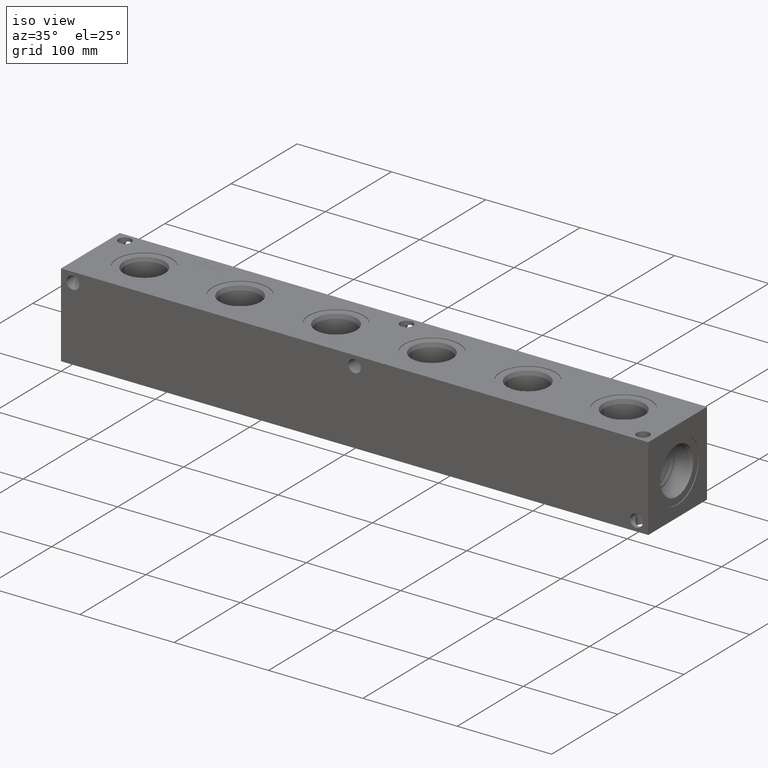
[diagram: clean part render]
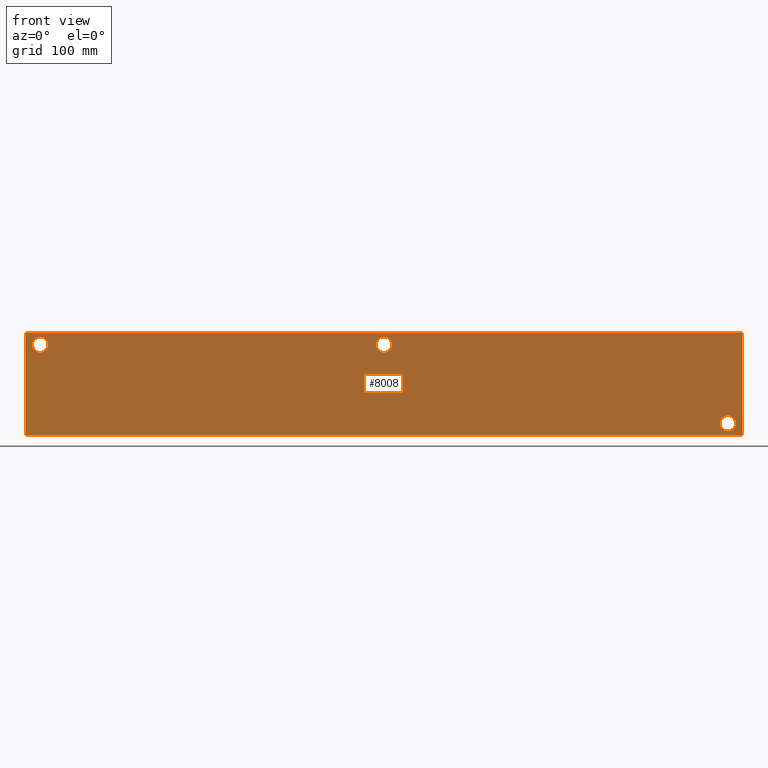
[diagram: tour spotlight — one face highlighted and labeled with its STEP entity id]
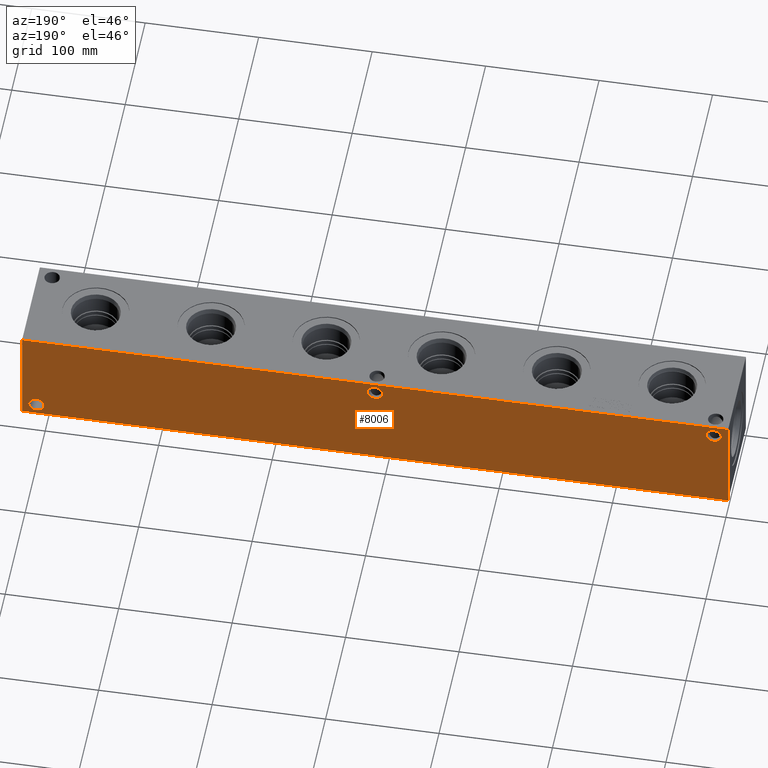
[diagram: tour spotlight — one face highlighted and labeled with its STEP entity id]
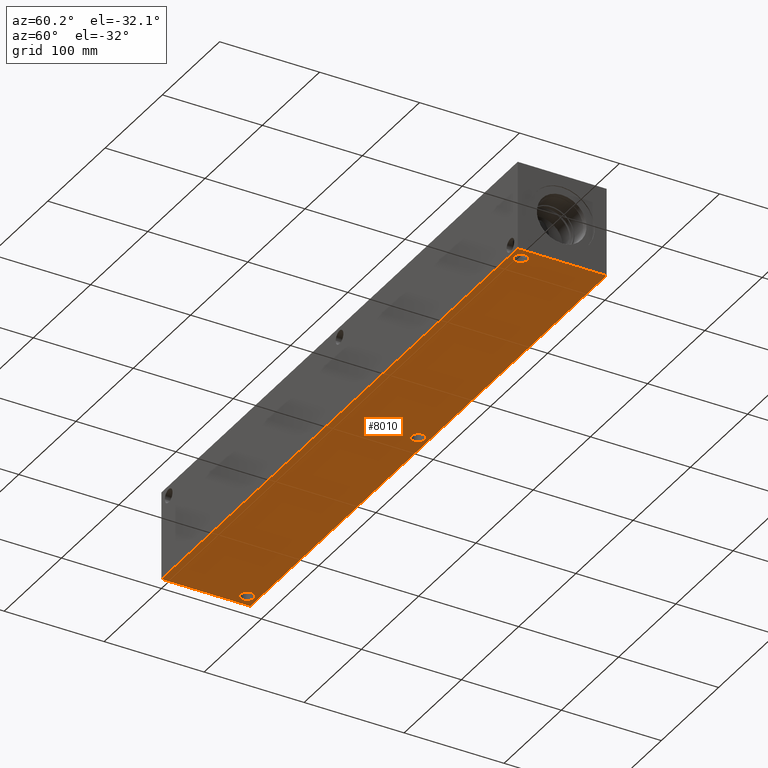
[diagram: tour spotlight — one face highlighted and labeled with its STEP entity id]
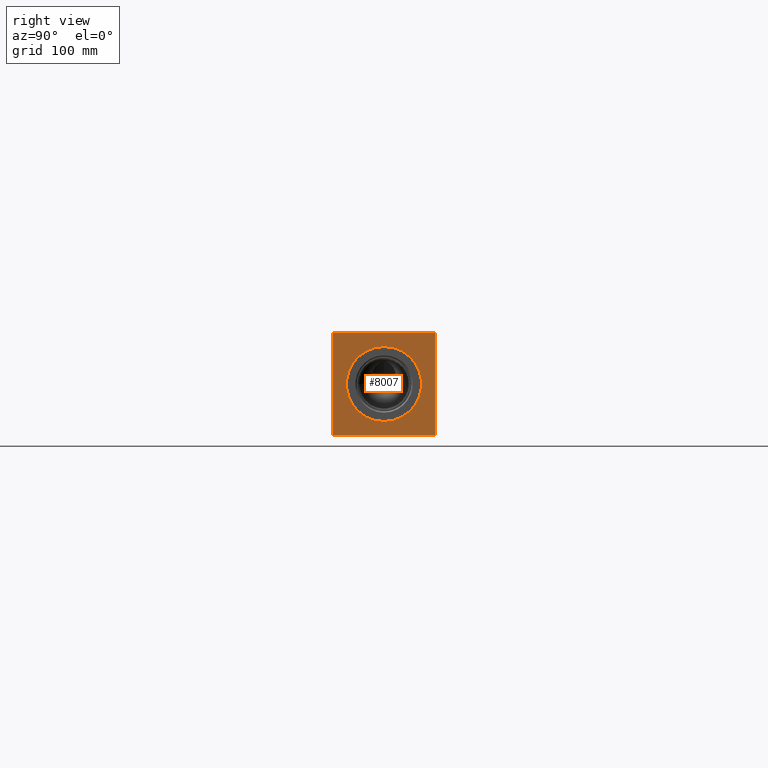
[diagram: tour spotlight — one face highlighted and labeled with its STEP entity id]
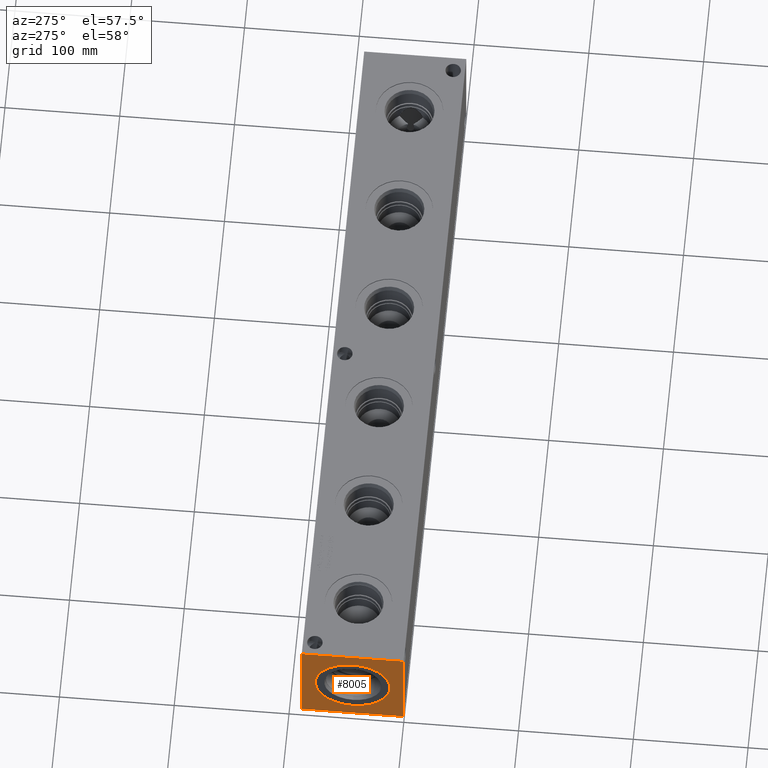
[diagram: tour spotlight — one face highlighted and labeled with its STEP entity id]
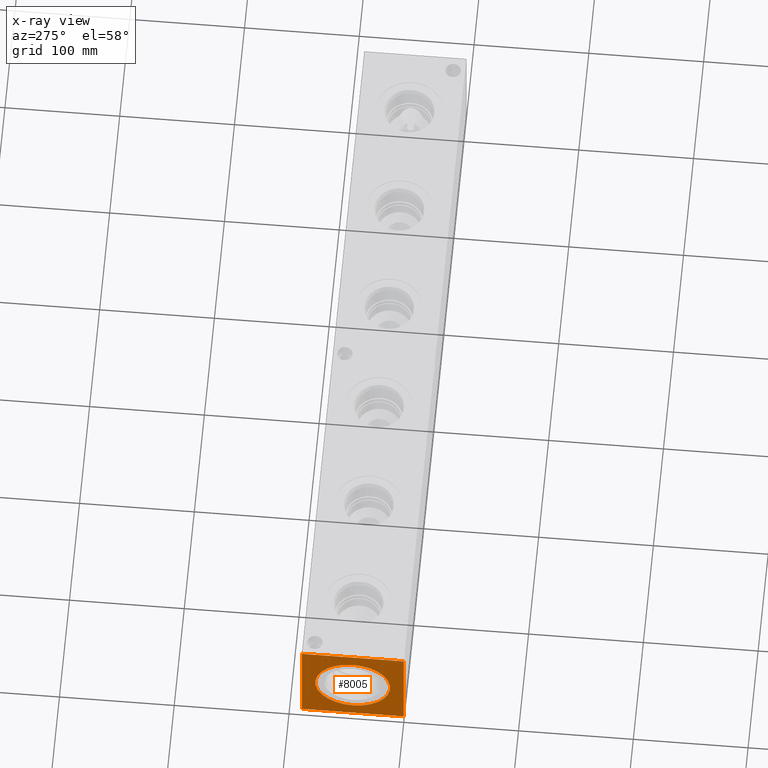
[diagram: x-ray of the same camera — body ghosted, this tour face saturated]
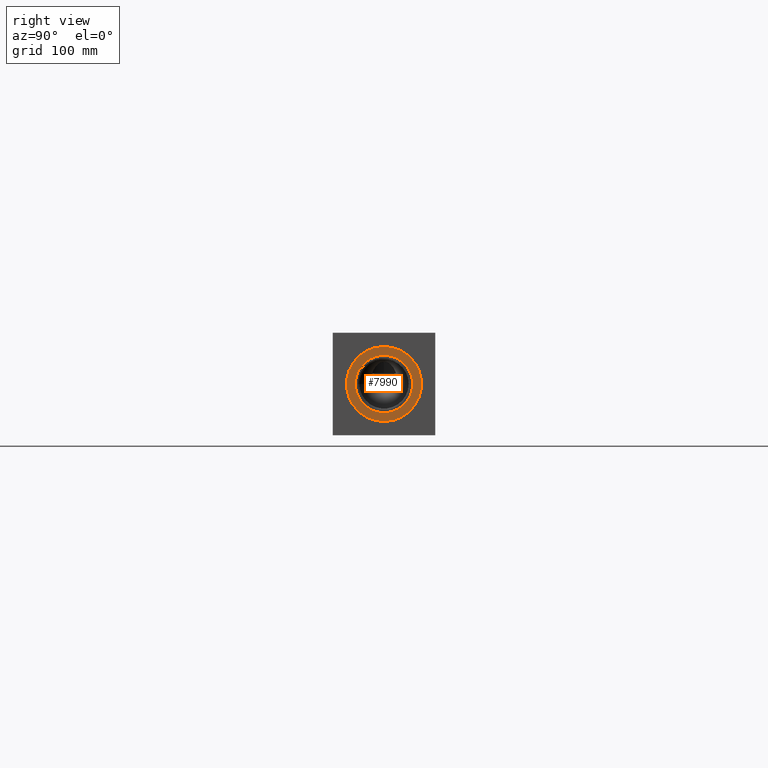
[diagram: tour spotlight — one face highlighted and labeled with its STEP entity id]
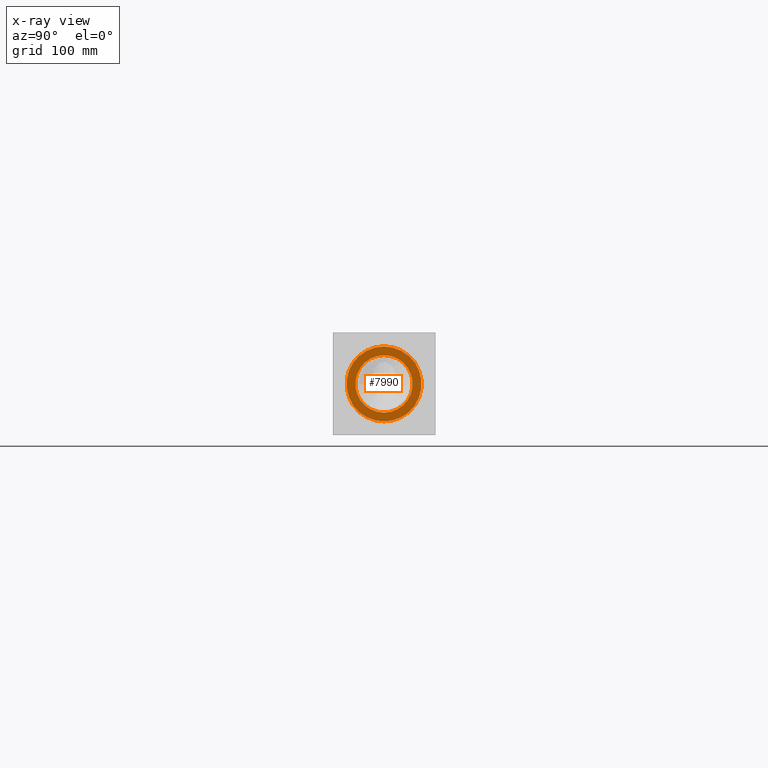
[diagram: x-ray of the same camera — body ghosted, this tour face saturated]
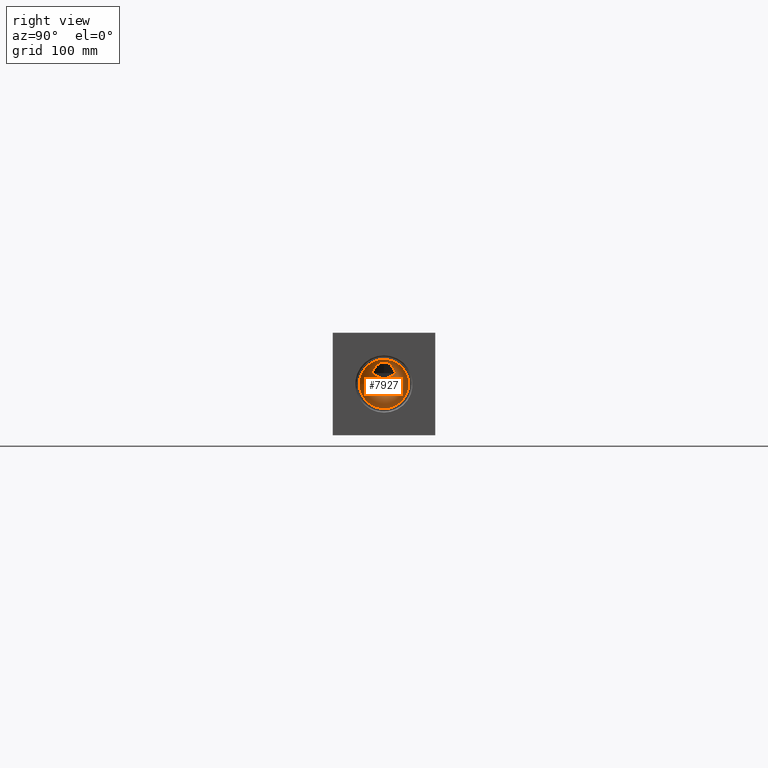
[diagram: tour spotlight — one face highlighted and labeled with its STEP entity id]
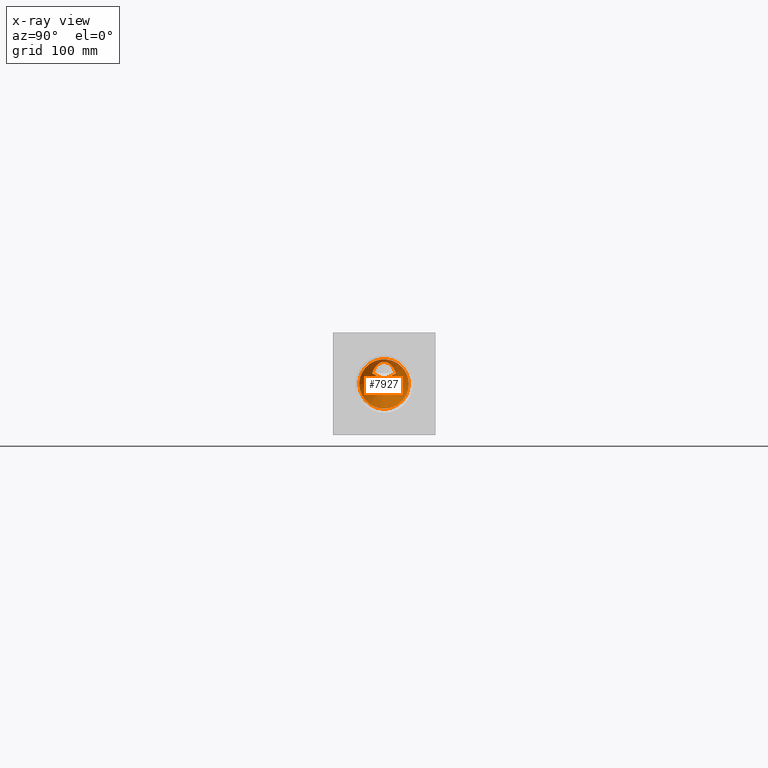
[diagram: x-ray of the same camera — body ghosted, this tour face saturated]
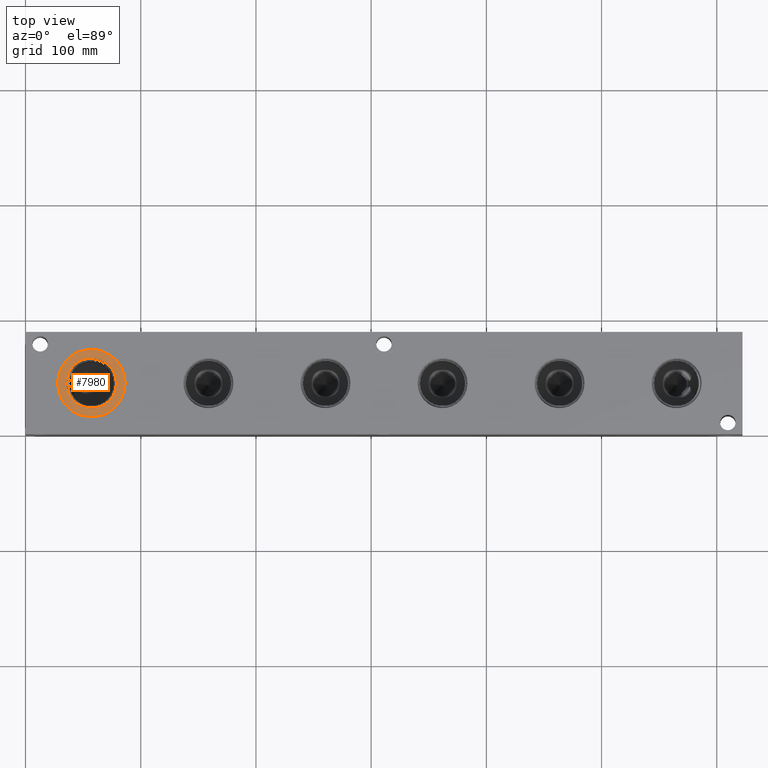
[diagram: tour spotlight — one face highlighted and labeled with its STEP entity id]
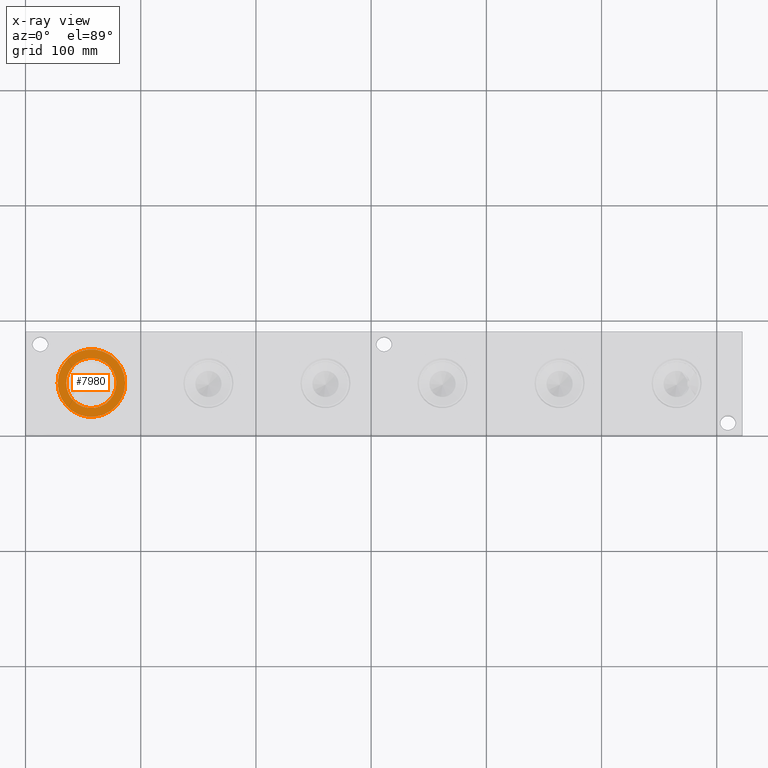
[diagram: x-ray of the same camera — body ghosted, this tour face saturated]
A machine part: a face-by-face anatomy tour. The part has 413 B-rep faces; the first image is the clean iso view, then the 8 largest visible faces are spotlighted one at a time (largest first), each with its STEP entity span.

Face 1 — front view, entity #8008. In plain terms, the highlighted planar face has unit normal (0, -1, 0).
Definition (entity closure, byte-faithful):
#128=CIRCLE('',#8237,6.7437);
#129=CIRCLE('',#8238,6.7437);
#131=CIRCLE('',#8246,6.7437);
#132=CIRCLE('',#8247,6.7437);
#134=CIRCLE('',#8255,6.7437);
#135=CIRCLE('',#8256,6.7437);
#331=FACE_BOUND('',#1572,.T.);
#332=FACE_BOUND('',#1573,.T.);
#333=FACE_BOUND('',#1574,.T.);
#1099=FACE_OUTER_BOUND('',#1571,.T.);
#1571=EDGE_LOOP('',(#7064,#7065,#7066,#7067));
#1572=EDGE_LOOP('',(#7068,#7069));
#1573=EDGE_LOOP('',(#7070,#7071));
#1574=EDGE_LOOP('',(#7072,#7073));
#1812=LINE('',#12430,#2516);
#2277=LINE('',#14008,#2981);
#2282=LINE('',#14017,#2986);
#2283=LINE('',#14019,#2987);
#2516=VECTOR('',#8838,10.);
#2981=VECTOR('',#10133,10.);
#2986=VECTOR('',#10142,10.);
#2987=VECTOR('',#10145,10.);
#3284=VERTEX_POINT('',#12428);
#3285=VERTEX_POINT('',#12429);
#3568=VERTEX_POINT('',#13380);
#3569=VERTEX_POINT('',#13381);
#3573=VERTEX_POINT('',#13396);
#3574=VERTEX_POINT('',#13397);
#3578=VERTEX_POINT('',#13412);
#3579=VERTEX_POINT('',#13413);
#3733=VERTEX_POINT('',#14006);
#3735=VERTEX_POINT('',#14015);
#4180=EDGE_CURVE('',#3284,#3285,#1812,.T.);
#4595=EDGE_CURVE('',#3568,#3569,#128,.T.);
#4596=EDGE_CURVE('',#3569,#3568,#129,.T.);
#4604=EDGE_CURVE('',#3573,#3574,#131,.T.);
#4605=EDGE_CURVE('',#3574,#3573,#132,.T.);
#4613=EDGE_CURVE('',#3578,#3579,#134,.T.);
#4614=EDGE_CURVE('',#3579,#3578,#135,.T.);
#4845=EDGE_CURVE('',#3733,#3284,#2277,.T.);
#4850=EDGE_CURVE('',#3735,#3285,#2282,.T.);
#4851=EDGE_CURVE('',#3733,#3735,#2283,.T.);
#7064=ORIENTED_EDGE('',*,*,#4851,.T.);
#7065=ORIENTED_EDGE('',*,*,#4850,.T.);
#7066=ORIENTED_EDGE('',*,*,#4180,.F.);
#7067=ORIENTED_EDGE('',*,*,#4845,.F.);
#7068=ORIENTED_EDGE('',*,*,#4595,.T.);
#7069=ORIENTED_EDGE('',*,*,#4596,.T.);
#7070=ORIENTED_EDGE('',*,*,#4604,.T.);
#7071=ORIENTED_EDGE('',*,*,#4605,.T.);
#7072=ORIENTED_EDGE('',*,*,#4613,.T.);
#7073=ORIENTED_EDGE('',*,*,#4614,.T.);
#7296=PLANE('',#8495);
#8008=ADVANCED_FACE('',(#1099,#331,#332,#333),#7296,.T.);
#8237=AXIS2_PLACEMENT_3D('',#13382,#9537,#9538);
#8238=AXIS2_PLACEMENT_3D('',#13383,#9539,#9540);
#8246=AXIS2_PLACEMENT_3D('',#13398,#9557,#9558);
#8247=AXIS2_PLACEMENT_3D('',#13399,#9559,#9560);
#8255=AXIS2_PLACEMENT_3D('',#13414,#9577,#9578);
#8256=AXIS2_PLACEMENT_3D('',#13415,#9579,#9580);
#8495=AXIS2_PLACEMENT_3D('',#14018,#10143,#10144);
#8838=DIRECTION('',(1.,0.,0.));
#9537=DIRECTION('center_axis',(0.,1.,0.));
#9538=DIRECTION('ref_axis',(1.,0.,0.));
#9539=DIRECTION('center_axis',(0.,1.,0.));
#9540=DIRECTION('ref_axis',(1.,0.,0.));
#9557=DIRECTION('center_axis',(0.,1.,0.));
#9558=DIRECTION('ref_axis',(1.,0.,0.));
#9559=DIRECTION('center_axis',(0.,1.,0.));
#9560=DIRECTION('ref_axis',(1.,0.,0.));
#9577=DIRECTION('center_axis',(0.,1.,0.));
#9578=DIRECTION('ref_axis',(1.,0.,0.));
#9579=DIRECTION('center_axis',(0.,1.,0.));
#9580=DIRECTION('ref_axis',(1.,0.,0.));
#10133=DIRECTION('',(0.,0.,1.));
#10142=DIRECTION('',(0.,0.,1.));
#10143=DIRECTION('center_axis',(0.,-1.,0.));
#10144=DIRECTION('ref_axis',(1.,0.,0.));
#10145=DIRECTION('',(1.,0.,0.));
#12428=CARTESIAN_POINT('',(0.,0.,88.9));
#12429=CARTESIAN_POINT('',(622.3,0.,88.9));
#12430=CARTESIAN_POINT('',(0.,0.,88.9));
#13380=CARTESIAN_POINT('',(317.8937,0.,78.5876));
#13381=CARTESIAN_POINT('',(304.4063,-7.105427357601E-14,78.5876));
#13382=CARTESIAN_POINT('Origin',(311.15,0.,78.5876));
#13383=CARTESIAN_POINT('Origin',(311.15,0.,78.5876));
#13396=CARTESIAN_POINT('',(19.4437,0.,78.5876));
#13397=CARTESIAN_POINT('',(5.9563,-7.105427357601E-14,78.5876));
#13398=CARTESIAN_POINT('Origin',(12.7,0.,78.5876));
#13399=CARTESIAN_POINT('Origin',(12.7,0.,78.5876));
#13412=CARTESIAN_POINT('',(616.3437,0.,10.3124));
#13413=CARTESIAN_POINT('',(602.8563,-7.105427357601E-14,10.3124));
#13414=CARTESIAN_POINT('Origin',(609.6,0.,10.3124));
#13415=CARTESIAN_POINT('Origin',(609.6,0.,10.3124));
#14006=CARTESIAN_POINT('',(0.,0.,0.));
#14008=CARTESIAN_POINT('',(0.,0.,0.));
#14015=CARTESIAN_POINT('',(622.3,0.,0.));
#14017=CARTESIAN_POINT('',(622.3,0.,0.));
#14018=CARTESIAN_POINT('Origin',(0.,0.,0.));
#14019=CARTESIAN_POINT('',(0.,0.,0.));

Face 2 — auxiliary view, entity #8006. In plain terms, the highlighted planar face has unit normal (0, 1, 0).
Definition (entity closure, byte-faithful):
#130=CIRCLE('',#8244,6.7437);
#133=CIRCLE('',#8253,6.7437);
#136=CIRCLE('',#8262,6.7437);
#327=FACE_BOUND('',#1566,.T.);
#328=FACE_BOUND('',#1567,.T.);
#329=FACE_BOUND('',#1568,.T.);
#1097=FACE_OUTER_BOUND('',#1565,.T.);
#1565=EDGE_LOOP('',(#7051,#7052,#7053,#7054));
#1566=EDGE_LOOP('',(#7055));
#1567=EDGE_LOOP('',(#7056));
#1568=EDGE_LOOP('',(#7057));
#1814=LINE('',#12434,#2518);
#2278=LINE('',#14009,#2982);
#2279=LINE('',#14012,#2983);
#2280=LINE('',#14013,#2984);
#2518=VECTOR('',#8840,10.);
#2982=VECTOR('',#10134,10.);
#2983=VECTOR('',#10137,10.);
#2984=VECTOR('',#10138,10.);
#3286=VERTEX_POINT('',#12431);
#3287=VERTEX_POINT('',#12433);
#3572=VERTEX_POINT('',#13392);
#3577=VERTEX_POINT('',#13408);
#3582=VERTEX_POINT('',#13424);
#3732=VERTEX_POINT('',#14005);
#3734=VERTEX_POINT('',#14011);
#4182=EDGE_CURVE('',#3286,#3287,#1814,.T.);
#4603=EDGE_CURVE('',#3572,#3572,#130,.T.);
#4612=EDGE_CURVE('',#3577,#3577,#133,.T.);
#4621=EDGE_CURVE('',#3582,#3582,#136,.T.);
#4846=EDGE_CURVE('',#3732,#3287,#2278,.T.);
#4847=EDGE_CURVE('',#3734,#3732,#2279,.T.);
#4848=EDGE_CURVE('',#3734,#3286,#2280,.T.);
#7051=ORIENTED_EDGE('',*,*,#4847,.T.);
#7052=ORIENTED_EDGE('',*,*,#4846,.T.);
#7053=ORIENTED_EDGE('',*,*,#4182,.F.);
#7054=ORIENTED_EDGE('',*,*,#4848,.F.);
#7055=ORIENTED_EDGE('',*,*,#4603,.T.);
#7056=ORIENTED_EDGE('',*,*,#4612,.T.);
#7057=ORIENTED_EDGE('',*,*,#4621,.T.);
#7294=PLANE('',#8493);
#8006=ADVANCED_FACE('',(#1097,#327,#328,#329),#7294,.T.);
#8244=AXIS2_PLACEMENT_3D('',#13394,#9553,#9554);
#8253=AXIS2_PLACEMENT_3D('',#13410,#9573,#9574);
#8262=AXIS2_PLACEMENT_3D('',#13426,#9593,#9594);
#8493=AXIS2_PLACEMENT_3D('',#14010,#10135,#10136);
#8840=DIRECTION('',(-1.,0.,0.));
#9553=DIRECTION('center_axis',(0.,-1.,0.));
#9554=DIRECTION('ref_axis',(1.,0.,0.));
#9573=DIRECTION('center_axis',(0.,-1.,0.));
#9574=DIRECTION('ref_axis',(1.,0.,0.));
#9593=DIRECTION('center_axis',(0.,-1.,0.));
#9594=DIRECTION('ref_axis',(1.,0.,0.));
#10134=DIRECTION('',(0.,0.,1.));
#10135=DIRECTION('center_axis',(0.,1.,0.));
#10136=DIRECTION('ref_axis',(-1.,0.,0.));
#10137=DIRECTION('',(-1.,0.,0.));
#10138=DIRECTION('',(0.,0.,1.));
#12431=CARTESIAN_POINT('',(622.3,88.9,88.9));
#12433=CARTESIAN_POINT('',(0.,88.9,88.9));
#12434=CARTESIAN_POINT('',(622.3,88.9,88.9));
#13392=CARTESIAN_POINT('',(304.4063,88.9,78.5876));
#13394=CARTESIAN_POINT('Origin',(311.15,88.9,78.5876));
#13408=CARTESIAN_POINT('',(5.9563,88.9,78.5876));
#13410=CARTESIAN_POINT('Origin',(12.7,88.9,78.5876));
#13424=CARTESIAN_POINT('',(602.8563,88.9,10.3124));
#13426=CARTESIAN_POINT('Origin',(609.6,88.9,10.3124));
#14005=CARTESIAN_POINT('',(0.,88.9,0.));
#14009=CARTESIAN_POINT('',(0.,88.9,0.));
#14010=CARTESIAN_POINT('Origin',(622.3,88.9,0.));
#14011=CARTESIAN_POINT('',(622.3,88.9,0.));
#14012=CARTESIAN_POINT('',(622.3,88.9,0.));
#14013=CARTESIAN_POINT('',(622.3,88.9,0.));

Face 3 — auxiliary view, entity #8010. In plain terms, the highlighted planar face has unit normal (0, 0, 1).
Definition (entity closure, byte-faithful):
#137=CIRCLE('',#8267,6.7437);
#138=CIRCLE('',#8269,6.7437);
#139=CIRCLE('',#8271,6.7437);
#334=FACE_BOUND('',#1577,.T.);
#335=FACE_BOUND('',#1578,.T.);
#336=FACE_BOUND('',#1579,.T.);
#1101=FACE_OUTER_BOUND('',#1576,.T.);
#1576=EDGE_LOOP('',(#7077,#7078,#7079,#7080));
#1577=EDGE_LOOP('',(#7081));
#1578=EDGE_LOOP('',(#7082));
#1579=EDGE_LOOP('',(#7083));
#2276=LINE('',#14007,#2980);
#2279=LINE('',#14012,#2983);
#2281=LINE('',#14016,#2985);
#2283=LINE('',#14019,#2987);
#2980=VECTOR('',#10132,10.);
#2983=VECTOR('',#10137,10.);
#2985=VECTOR('',#10141,10.);
#2987=VECTOR('',#10145,10.);
#3583=VERTEX_POINT('',#13434);
#3584=VERTEX_POINT('',#13438);
#3585=VERTEX_POINT('',#13442);
#3732=VERTEX_POINT('',#14005);
#3733=VERTEX_POINT('',#14006);
#3734=VERTEX_POINT('',#14011);
#3735=VERTEX_POINT('',#14015);
#4626=EDGE_CURVE('',#3583,#3583,#137,.T.);
#4628=EDGE_CURVE('',#3584,#3584,#138,.T.);
#4630=EDGE_CURVE('',#3585,#3585,#139,.T.);
#4844=EDGE_CURVE('',#3732,#3733,#2276,.T.);
#4847=EDGE_CURVE('',#3734,#3732,#2279,.T.);
#4849=EDGE_CURVE('',#3735,#3734,#2281,.T.);
#4851=EDGE_CURVE('',#3733,#3735,#2283,.T.);
#7077=ORIENTED_EDGE('',*,*,#4851,.F.);
#7078=ORIENTED_EDGE('',*,*,#4844,.F.);
#7079=ORIENTED_EDGE('',*,*,#4847,.F.);
#7080=ORIENTED_EDGE('',*,*,#4849,.F.);
#7081=ORIENTED_EDGE('',*,*,#4626,.T.);
#7082=ORIENTED_EDGE('',*,*,#4628,.T.);
#7083=ORIENTED_EDGE('',*,*,#4630,.T.);
#7298=PLANE('',#8497);
#8010=ADVANCED_FACE('',(#1101,#334,#335,#336),#7298,.F.);
#8267=AXIS2_PLACEMENT_3D('',#13436,#9607,#9608);
#8269=AXIS2_PLACEMENT_3D('',#13440,#9612,#9613);
#8271=AXIS2_PLACEMENT_3D('',#13444,#9617,#9618);
#8497=AXIS2_PLACEMENT_3D('',#14021,#10148,#10149);
#9607=DIRECTION('center_axis',(0.,0.,1.));
#9608=DIRECTION('ref_axis',(1.,0.,0.));
#9612=DIRECTION('center_axis',(0.,0.,1.));
#9613=DIRECTION('ref_axis',(1.,0.,0.));
#9617=DIRECTION('center_axis',(0.,0.,1.));
#9618=DIRECTION('ref_axis',(1.,0.,0.));
#10132=DIRECTION('',(0.,-1.,0.));
#10137=DIRECTION('',(-1.,0.,0.));
#10141=DIRECTION('',(0.,1.,0.));
#10145=DIRECTION('',(1.,0.,0.));
#10148=DIRECTION('center_axis',(0.,0.,1.));
#10149=DIRECTION('ref_axis',(1.,0.,0.));
#13434=CARTESIAN_POINT('',(304.4063,78.5876,0.));
#13436=CARTESIAN_POINT('Origin',(311.15,78.5876,0.));
#13438=CARTESIAN_POINT('',(5.9563,78.5876,0.));
#13440=CARTESIAN_POINT('Origin',(12.7,78.5876,0.));
#13442=CARTESIAN_POINT('',(602.8563,10.3124,0.));
#13444=CARTESIAN_POINT('Origin',(609.6,10.3124,0.));
#14005=CARTESIAN_POINT('',(0.,88.9,0.));
#14006=CARTESIAN_POINT('',(0.,0.,0.));
#14007=CARTESIAN_POINT('',(0.,88.9,0.));
#14011=CARTESIAN_POINT('',(622.3,88.9,0.));
#14012=CARTESIAN_POINT('',(622.3,88.9,0.));
#14015=CARTESIAN_POINT('',(622.3,0.,0.));
#14016=CARTESIAN_POINT('',(622.3,0.,0.));
#14019=CARTESIAN_POINT('',(0.,0.,0.));
#14021=CARTESIAN_POINT('Origin',(311.15,44.45,0.));

Face 4 — right view, entity #8007. In plain terms, the highlighted planar face has unit normal (1, 0, 0).
Definition (entity closure, byte-faithful):
#242=CIRCLE('',#8447,32.5628);
#243=CIRCLE('',#8448,32.5628);
#330=FACE_BOUND('',#1570,.T.);
#1098=FACE_OUTER_BOUND('',#1569,.T.);
#1569=EDGE_LOOP('',(#7058,#7059,#7060,#7061));
#1570=EDGE_LOOP('',(#7062,#7063));
#1813=LINE('',#12432,#2517);
#2280=LINE('',#14013,#2984);
#2281=LINE('',#14016,#2985);
#2282=LINE('',#14017,#2986);
#2517=VECTOR('',#8839,10.);
#2984=VECTOR('',#10138,10.);
#2985=VECTOR('',#10141,10.);
#2986=VECTOR('',#10142,10.);
#3285=VERTEX_POINT('',#12429);
#3286=VERTEX_POINT('',#12431);
#3701=VERTEX_POINT('',#13915);
#3702=VERTEX_POINT('',#13916);
#3734=VERTEX_POINT('',#14011);
#3735=VERTEX_POINT('',#14015);
#4181=EDGE_CURVE('',#3285,#3286,#1813,.T.);
#4801=EDGE_CURVE('',#3701,#3702,#242,.T.);
#4802=EDGE_CURVE('',#3702,#3701,#243,.T.);
#4848=EDGE_CURVE('',#3734,#3286,#2280,.T.);
#4849=EDGE_CURVE('',#3735,#3734,#2281,.T.);
#4850=EDGE_CURVE('',#3735,#3285,#2282,.T.);
#7058=ORIENTED_EDGE('',*,*,#4849,.T.);
#7059=ORIENTED_EDGE('',*,*,#4848,.T.);
#7060=ORIENTED_EDGE('',*,*,#4181,.F.);
#7061=ORIENTED_EDGE('',*,*,#4850,.F.);
#7062=ORIENTED_EDGE('',*,*,#4801,.T.);
#7063=ORIENTED_EDGE('',*,*,#4802,.T.);
#7295=PLANE('',#8494);
#8007=ADVANCED_FACE('',(#1098,#330),#7295,.T.);
#8447=AXIS2_PLACEMENT_3D('',#13917,#10027,#10028);
#8448=AXIS2_PLACEMENT_3D('',#13918,#10029,#10030);
#8494=AXIS2_PLACEMENT_3D('',#14014,#10139,#10140);
#8839=DIRECTION('',(0.,1.,0.));
#10027=DIRECTION('center_axis',(-1.,0.,0.));
#10028=DIRECTION('ref_axis',(0.,0.,-1.));
#10029=DIRECTION('center_axis',(-1.,0.,0.));
#10030=DIRECTION('ref_axis',(0.,0.,-1.));
#10138=DIRECTION('',(0.,0.,1.));
#10139=DIRECTION('center_axis',(1.,0.,0.));
#10140=DIRECTION('ref_axis',(0.,1.,0.));
#10141=DIRECTION('',(0.,1.,0.));
#10142=DIRECTION('',(0.,0.,1.));
#12429=CARTESIAN_POINT('',(622.3,0.,88.9));
#12431=CARTESIAN_POINT('',(622.3,88.9,88.9));
#12432=CARTESIAN_POINT('',(622.3,0.,88.9));
#13915=CARTESIAN_POINT('',(622.3,44.45,11.8872));
#13916=CARTESIAN_POINT('',(622.3,44.45,77.0128));
#13917=CARTESIAN_POINT('Origin',(622.3,44.45,44.45));
#13918=CARTESIAN_POINT('Origin',(622.3,44.45,44.45));
#14011=CARTESIAN_POINT('',(622.3,88.9,0.));
#14013=CARTESIAN_POINT('',(622.3,88.9,0.));
#14014=CARTESIAN_POINT('Origin',(622.3,0.,0.));
#14015=CARTESIAN_POINT('',(622.3,0.,0.));
#14016=CARTESIAN_POINT('',(622.3,0.,0.));
#14017=CARTESIAN_POINT('',(622.3,0.,0.));

Face 5 — auxiliary view, entity #8005. An x-ray twin of the same camera follows (body ghosted, this face saturated) — the face is partly hidden behind the body. In plain terms, the highlighted planar face has unit normal (-1, 0, 0).
Definition (entity closure, byte-faithful):
#262=CIRCLE('',#8478,32.5628);
#263=CIRCLE('',#8479,32.5628);
#326=FACE_BOUND('',#1564,.T.);
#1096=FACE_OUTER_BOUND('',#1563,.T.);
#1563=EDGE_LOOP('',(#7045,#7046,#7047,#7048));
#1564=EDGE_LOOP('',(#7049,#7050));
#1815=LINE('',#12435,#2519);
#2276=LINE('',#14007,#2980);
#2277=LINE('',#14008,#2981);
#2278=LINE('',#14009,#2982);
#2519=VECTOR('',#8841,10.);
#2980=VECTOR('',#10132,10.);
#2981=VECTOR('',#10133,10.);
#2982=VECTOR('',#10134,10.);
#3284=VERTEX_POINT('',#12428);
#3287=VERTEX_POINT('',#12433);
#3722=VERTEX_POINT('',#13976);
#3723=VERTEX_POINT('',#13977);
#3732=VERTEX_POINT('',#14005);
#3733=VERTEX_POINT('',#14006);
#4183=EDGE_CURVE('',#3287,#3284,#1815,.T.);
#4830=EDGE_CURVE('',#3722,#3723,#262,.T.);
#4831=EDGE_CURVE('',#3723,#3722,#263,.T.);
#4844=EDGE_CURVE('',#3732,#3733,#2276,.T.);
#4845=EDGE_CURVE('',#3733,#3284,#2277,.T.);
#4846=EDGE_CURVE('',#3732,#3287,#2278,.T.);
#7045=ORIENTED_EDGE('',*,*,#4844,.T.);
#7046=ORIENTED_EDGE('',*,*,#4845,.T.);
#7047=ORIENTED_EDGE('',*,*,#4183,.F.);
#7048=ORIENTED_EDGE('',*,*,#4846,.F.);
#7049=ORIENTED_EDGE('',*,*,#4830,.T.);
#7050=ORIENTED_EDGE('',*,*,#4831,.T.);
#7293=PLANE('',#8492);
#8005=ADVANCED_FACE('',(#1096,#326),#7293,.T.);
#8478=AXIS2_PLACEMENT_3D('',#13978,#10098,#10099);
#8479=AXIS2_PLACEMENT_3D('',#13979,#10100,#10101);
#8492=AXIS2_PLACEMENT_3D('',#14004,#10130,#10131);
#8841=DIRECTION('',(0.,-1.,0.));
#10098=DIRECTION('center_axis',(1.,0.,0.));
#10099=DIRECTION('ref_axis',(0.,0.,1.));
#10100=DIRECTION('center_axis',(1.,0.,0.));
#10101=DIRECTION('ref_axis',(0.,0.,1.));
#10130=DIRECTION('center_axis',(-1.,0.,0.));
#10131=DIRECTION('ref_axis',(0.,-1.,0.));
#10132=DIRECTION('',(0.,-1.,0.));
#10133=DIRECTION('',(0.,0.,1.));
#10134=DIRECTION('',(0.,0.,1.));
#12428=CARTESIAN_POINT('',(0.,0.,88.9));
#12433=CARTESIAN_POINT('',(0.,88.9,88.9));
#12435=CARTESIAN_POINT('',(0.,88.9,88.9));
#13976=CARTESIAN_POINT('',(0.,44.45,77.0128));
#13977=CARTESIAN_POINT('',(0.,44.45,11.8872));
#13978=CARTESIAN_POINT('Origin',(0.,44.45,44.45));
#13979=CARTESIAN_POINT('Origin',(0.,44.45,44.45));
#14004=CARTESIAN_POINT('Origin',(0.,88.9,0.));
#14005=CARTESIAN_POINT('',(0.,88.9,0.));
#14006=CARTESIAN_POINT('',(0.,0.,0.));
#14007=CARTESIAN_POINT('',(0.,88.9,0.));
#14008=CARTESIAN_POINT('',(0.,0.,0.));
#14009=CARTESIAN_POINT('',(0.,88.9,0.));

Face 6 — right view, entity #7990. An x-ray twin of the same camera follows (body ghosted, this face saturated) — the face is partly hidden behind the body. In plain terms, the highlighted planar face has unit normal (-1, 0, 0).
Definition (entity closure, byte-faithful):
#244=CIRCLE('',#8449,32.5628);
#245=CIRCLE('',#8450,32.5628);
#246=CIRCLE('',#8452,24.9047);
#247=CIRCLE('',#8453,24.9047);
#322=FACE_BOUND('',#1545,.T.);
#1081=FACE_OUTER_BOUND('',#1544,.T.);
#1544=EDGE_LOOP('',(#6963,#6964));
#1545=EDGE_LOOP('',(#6965,#6966));
#3703=VERTEX_POINT('',#13919);
#3704=VERTEX_POINT('',#13921);
#3705=VERTEX_POINT('',#13925);
#3706=VERTEX_POINT('',#13926);
#4804=EDGE_CURVE('',#3703,#3704,#244,.T.);
#4805=EDGE_CURVE('',#3704,#3703,#245,.T.);
#4806=EDGE_CURVE('',#3705,#3706,#246,.T.);
#4807=EDGE_CURVE('',#3706,#3705,#247,.T.);
#6963=ORIENTED_EDGE('',*,*,#4805,.F.);
#6964=ORIENTED_EDGE('',*,*,#4804,.F.);
#6965=ORIENTED_EDGE('',*,*,#4806,.T.);
#6966=ORIENTED_EDGE('',*,*,#4807,.T.);
#7290=PLANE('',#8451);
#7990=ADVANCED_FACE('',(#1081,#322),#7290,.F.);
#8449=AXIS2_PLACEMENT_3D('',#13922,#10032,#10033);
#8450=AXIS2_PLACEMENT_3D('',#13923,#10034,#10035);
#8451=AXIS2_PLACEMENT_3D('',#13924,#10036,#10037);
#8452=AXIS2_PLACEMENT_3D('',#13927,#10038,#10039);
#8453=AXIS2_PLACEMENT_3D('',#13928,#10040,#10041);
#10032=DIRECTION('center_axis',(-1.,0.,0.));
#10033=DIRECTION('ref_axis',(0.,0.,1.));
#10034=DIRECTION('center_axis',(-1.,0.,0.));
#10035=DIRECTION('ref_axis',(0.,0.,1.));
#10036=DIRECTION('center_axis',(-1.,0.,0.));
#10037=DIRECTION('ref_axis',(0.,0.,1.));
#10038=DIRECTION('center_axis',(-1.,0.,0.));
#10039=DIRECTION('ref_axis',(0.,0.,1.));
#10040=DIRECTION('center_axis',(-1.,0.,0.));
#10041=DIRECTION('ref_axis',(0.,0.,1.));
#13919=CARTESIAN_POINT('',(621.5126,44.45,77.0128));
#13921=CARTESIAN_POINT('',(621.5126,44.45,11.8872));
#13922=CARTESIAN_POINT('Origin',(621.5126,44.45,44.45));
#13923=CARTESIAN_POINT('Origin',(621.5126,44.45,44.45));
#13924=CARTESIAN_POINT('Origin',(621.5126,44.45,19.5453));
#13925=CARTESIAN_POINT('',(621.5126,44.45,19.5453));
#13926=CARTESIAN_POINT('',(621.5126,44.45,69.3547));
#13927=CARTESIAN_POINT('Origin',(621.5126,44.45,44.45));
#13928=CARTESIAN_POINT('Origin',(621.5126,44.45,44.45));

Face 7 — right view, entity #7927. An x-ray twin of the same camera follows (body ghosted, this face saturated) — the face is partly hidden behind the body. In plain terms, the highlighted conical surface has half-angle 60 deg.
Definition (entity closure, byte-faithful):
#19=CONICAL_SURFACE('',#8303,10.7188,1.0471975511966);
#161=CIRCLE('',#8304,21.4376);
#162=CIRCLE('',#8305,21.4376);
#565=B_SPLINE_CURVE_WITH_KNOTS('',3,(#13501,#13502,#13503,#13504,#13505,
#13506,#13507,#13508,#13509,#13510,#13511,#13512,#13513,#13514,#13515,#13516,
#13517,#13518,#13519,#13520,#13521,#13522),.UNSPECIFIED.,.F.,.F.,(4,2,2,
2,2,2,2,2,2,2,4),(5.65804614751939,5.86799814580526,6.20600852675308,6.54401890770089,
6.83306145733421,7.12210400696753,7.41114655660084,7.70018910623416,8.03819948718198,
8.3762098681298,8.58616186641566),.UNSPECIFIED.);
#566=B_SPLINE_CURVE_WITH_KNOTS('',3,(#13526,#13527,#13528,#13529,#13530,
#13531,#13532,#13533),.UNSPECIFIED.,.F.,.F.,(4,2,2,4),(3.82502520633004,
3.98994951458757,4.43327723843063,5.02336071878951),.UNSPECIFIED.);
#567=B_SPLINE_CURVE_WITH_KNOTS('',3,(#13538,#13539,#13540,#13541,#13542,
#13543,#13544,#13545),.UNSPECIFIED.,.F.,.F.,(4,2,2,4),(2.06988286269951,
2.65996634305838,3.10329406690145,3.26821837515897),.UNSPECIFIED.);
#568=B_SPLINE_CURVE_WITH_KNOTS('',3,(#13552,#13553,#13554,#13555,#13556,
#13557,#13558,#13559,#13560,#13561),.UNSPECIFIED.,.F.,.F.,(4,2,2,2,4),(0.963727082277219,
1.02786096428721,1.1892771048369,1.35069324538659,1.47250445859568),
 .UNSPECIFIED.);
#569=B_SPLINE_CURVE_WITH_KNOTS('',3,(#13563,#13564,#13565,#13566,#13567,
#13568,#13569,#13570),.UNSPECIFIED.,.F.,.F.,(4,2,2,4),(0.,0.161416140549687,
0.322832281099374,0.386966163109366),.UNSPECIFIED.);
#570=B_SPLINE_CURVE_WITH_KNOTS('',3,(#13571,#13572,#13573,#13574,#13575,
#13576,#13577,#13578,#13579,#13580,#13581,#13582,#13583,#13584,#13585,#13586,
#13587,#13588),.UNSPECIFIED.,.F.,.F.,(4,2,2,2,2,2,2,2,4),(1.47250445859568,
1.48922891715502,1.62776458892345,1.74292800916944,1.85809142941544,1.97325484966144,
2.08841826990744,2.22695394167587,2.3654896134443),.UNSPECIFIED.);
#1018=FACE_OUTER_BOUND('',#1468,.T.);
#1468=EDGE_LOOP('',(#6663,#6664,#6665,#6666,#6667,#6668,#6669,#6670,#6671,
#6672));
#2214=LINE('',#13551,#2918);
#2918=VECTOR('',#9694,10.7188);
#3604=VERTEX_POINT('',#13498);
#3605=VERTEX_POINT('',#13500);
#3606=VERTEX_POINT('',#13525);
#3608=VERTEX_POINT('',#13536);
#3609=VERTEX_POINT('',#13547);
#3610=VERTEX_POINT('',#13548);
#3611=VERTEX_POINT('',#13550);
#3612=VERTEX_POINT('',#13562);
#4658=EDGE_CURVE('',#3604,#3605,#565,.T.);
#4660=EDGE_CURVE('',#3606,#3605,#566,.T.);
#4663=EDGE_CURVE('',#3604,#3608,#567,.T.);
#4664=EDGE_CURVE('',#3609,#3610,#161,.T.);
#4665=EDGE_CURVE('',#3610,#3611,#2214,.T.);
#4666=EDGE_CURVE('',#3606,#3611,#568,.T.);
#4667=EDGE_CURVE('',#3612,#3608,#569,.T.);
#4668=EDGE_CURVE('',#3611,#3612,#570,.T.);
#4669=EDGE_CURVE('',#3610,#3609,#162,.T.);
#6663=ORIENTED_EDGE('',*,*,#4664,.T.);
#6664=ORIENTED_EDGE('',*,*,#4665,.T.);
#6665=ORIENTED_EDGE('',*,*,#4666,.F.);
#6666=ORIENTED_EDGE('',*,*,#4660,.T.);
#6667=ORIENTED_EDGE('',*,*,#4658,.F.);
#6668=ORIENTED_EDGE('',*,*,#4663,.T.);
#6669=ORIENTED_EDGE('',*,*,#4667,.F.);
#6670=ORIENTED_EDGE('',*,*,#4668,.F.);
#6671=ORIENTED_EDGE('',*,*,#4665,.F.);
#6672=ORIENTED_EDGE('',*,*,#4669,.T.);
#7927=ADVANCED_FACE('',(#1018),#19,.F.);
#8303=AXIS2_PLACEMENT_3D('',#13546,#9690,#9691);
#8304=AXIS2_PLACEMENT_3D('',#13549,#9692,#9693);
#8305=AXIS2_PLACEMENT_3D('',#13589,#9695,#9696);
#9690=DIRECTION('center_axis',(1.,0.,0.));
#9691=DIRECTION('ref_axis',(0.,1.,0.));
#9692=DIRECTION('center_axis',(1.,0.,0.));
#9693=DIRECTION('ref_axis',(0.,1.,0.));
#9694=DIRECTION('',(-0.5,0.866025403784439,1.06057523872491E-16));
#9695=DIRECTION('center_axis',(1.,0.,0.));
#9696=DIRECTION('ref_axis',(0.,1.,0.));
#13498=CARTESIAN_POINT('',(581.193426336425,54.7218533569996,53.84568));
#13500=CARTESIAN_POINT('',(581.193426336425,34.1781466430005,53.84568));
#13501=CARTESIAN_POINT('Ctrl Pts',(581.193426336425,54.7218533569996,53.84568));
#13502=CARTESIAN_POINT('Ctrl Pts',(581.351550062569,54.474882701923,54.5214653193536));
#13503=CARTESIAN_POINT('Ctrl Pts',(581.516989787121,54.2037332339551,55.1715590186225));
#13504=CARTESIAN_POINT('Ctrl Pts',(581.949319485886,53.44852759946,56.777488179793));
#13505=CARTESIAN_POINT('Ctrl Pts',(582.257713525749,52.8638820579872,57.8235324005196));
#13506=CARTESIAN_POINT('Ctrl Pts',(582.867366535572,51.4900429684462,59.7630699518308));
#13507=CARTESIAN_POINT('Ctrl Pts',(583.166971028151,50.6988031956831,60.6556329194883));
#13508=CARTESIAN_POINT('Ctrl Pts',(583.625559534201,49.1520454358924,61.9845702939364));
#13509=CARTESIAN_POINT('Ctrl Pts',(583.832153813471,48.2935260977443,62.5641719445623));
#13510=CARTESIAN_POINT('Ctrl Pts',(584.120829432664,46.4256536267811,63.3638574269856));
#13511=CARTESIAN_POINT('Ctrl Pts',(584.2,45.4134751654444,63.5783779018251));
#13512=CARTESIAN_POINT('Ctrl Pts',(584.2,43.4865248345556,63.5783779018251));
#13513=CARTESIAN_POINT('Ctrl Pts',(584.120829432664,42.4743463732189,63.3638574269855));
#13514=CARTESIAN_POINT('Ctrl Pts',(583.832153813471,40.6064739022557,62.5641719445623));
#13515=CARTESIAN_POINT('Ctrl Pts',(583.625559534201,39.7479545641076,61.9845702939365));
#13516=CARTESIAN_POINT('Ctrl Pts',(583.166971028151,38.2011968043169,60.6556329194884));
#13517=CARTESIAN_POINT('Ctrl Pts',(582.867366535572,37.4099570315538,59.7630699518308));
#13518=CARTESIAN_POINT('Ctrl Pts',(582.257713525749,36.0361179420128,57.8235324005197));
#13519=CARTESIAN_POINT('Ctrl Pts',(581.949319485886,35.45147240054,56.777488179793));
#13520=CARTESIAN_POINT('Ctrl Pts',(581.516989787121,34.6962667660449,55.1715590186225));
#13521=CARTESIAN_POINT('Ctrl Pts',(581.351550062569,34.425117298077,54.5214653193537));
#13522=CARTESIAN_POINT('Ctrl Pts',(581.193426336425,34.1781466430004,53.84568));
#13525=CARTESIAN_POINT('',(576.313326337598,42.178907333388,49.4243329624762));
#13526=CARTESIAN_POINT('Ctrl Pts',(576.313326357653,42.1789073504875,49.4243329863925));
#13527=CARTESIAN_POINT('Ctrl Pts',(576.47907534427,41.7908852120715,49.5627685103714));
#13528=CARTESIAN_POINT('Ctrl Pts',(576.662053323613,41.4211878259751,49.7176773595789));
#13529=CARTESIAN_POINT('Ctrl Pts',(577.376194817041,40.0688097713657,50.3311850900941));
#13530=CARTESIAN_POINT('Ctrl Pts',(577.958077161744,39.124336505341,50.8476673755516));
#13531=CARTESIAN_POINT('Ctrl Pts',(579.401430951373,36.8491229141053,52.1601319713942));
#13532=CARTESIAN_POINT('Ctrl Pts',(580.279204584774,35.5320153227366,52.9796852103072));
#13533=CARTESIAN_POINT('Ctrl Pts',(581.193426336425,34.1781466430005,53.84568));
#13536=CARTESIAN_POINT('',(576.313326337598,46.721092666612,49.4243329624762));
#13538=CARTESIAN_POINT('Ctrl Pts',(581.193426336425,54.7218533569995,53.84568));
#13539=CARTESIAN_POINT('Ctrl Pts',(580.279204584774,53.3679846772634,52.9796852103072));
#13540=CARTESIAN_POINT('Ctrl Pts',(579.401430951373,52.0508770858947,52.1601319713942));
#13541=CARTESIAN_POINT('Ctrl Pts',(577.958077161744,49.775663494659,50.8476673755515));
#13542=CARTESIAN_POINT('Ctrl Pts',(577.376194817041,48.8311902286343,50.331185090094));
#13543=CARTESIAN_POINT('Ctrl Pts',(576.662053323613,47.478812174025,49.7176773595789));
#13544=CARTESIAN_POINT('Ctrl Pts',(576.47907534427,47.1091147879285,49.5627685103714));
#13545=CARTESIAN_POINT('Ctrl Pts',(576.313326357653,46.7210926495126,49.4243329863925));
#13546=CARTESIAN_POINT('Origin',(579.34472793461,44.45,44.45));
#13547=CARTESIAN_POINT('',(585.53323,65.8876,44.45));
#13548=CARTESIAN_POINT('',(585.53323,23.0124,44.45));
#13549=CARTESIAN_POINT('Origin',(585.53323,44.45,44.45));
#13550=CARTESIAN_POINT('',(574.798548991532,41.6054129097105,44.4500000000044));
#13551=CARTESIAN_POINT('',(579.34472793461,33.7312,44.45));
#13552=CARTESIAN_POINT('Ctrl Pts',(576.313326343767,42.1789073321331,49.4243329515727));
#13553=CARTESIAN_POINT('Ctrl Pts',(576.239427141478,42.0709986743043,49.2343593027166));
#13554=CARTESIAN_POINT('Ctrl Pts',(576.165570823208,41.9770744525634,49.0412291525989));
#13555=CARTESIAN_POINT('Ctrl Pts',(575.92047945511,41.6966529809767,48.3881231169952));
#13556=CARTESIAN_POINT('Ctrl Pts',(575.728785384367,41.5383288928661,47.8542414949243));
#13557=CARTESIAN_POINT('Ctrl Pts',(575.369617716743,41.3539396607785,46.7574267557703));
#13558=CARTESIAN_POINT('Ctrl Pts',(575.202975326754,41.328412588379,46.1941312444813));
#13559=CARTESIAN_POINT('Ctrl Pts',(574.969617736367,41.400873336852,45.2822091921242));
#13560=CARTESIAN_POINT('Ctrl Pts',(574.874167887037,41.4744371406837,44.8589227756603));
#13561=CARTESIAN_POINT('Ctrl Pts',(574.798548991532,41.6054129097105,44.4500000000087));
#13562=CARTESIAN_POINT('',(575.069980822133,47.5302907847075,45.6744111813585));
#13563=CARTESIAN_POINT('Ctrl Pts',(575.069980822133,47.5302907847075,45.6744111813585));
#13564=CARTESIAN_POINT('Ctrl Pts',(575.202975326754,47.571587411621,46.1941312444813));
#13565=CARTESIAN_POINT('Ctrl Pts',(575.369617716743,47.5460603392215,46.7574267557703));
#13566=CARTESIAN_POINT('Ctrl Pts',(575.728785384367,47.3616711071339,47.8542414949243));
#13567=CARTESIAN_POINT('Ctrl Pts',(575.92047945511,47.2033470190233,48.3881231169952));
#13568=CARTESIAN_POINT('Ctrl Pts',(576.165570823208,46.9229255474366,49.0412291525989));
#13569=CARTESIAN_POINT('Ctrl Pts',(576.239427141478,46.8290013256957,49.2343593027166));
#13570=CARTESIAN_POINT('Ctrl Pts',(576.313326343767,46.721092667867,49.4243329515726));
#13571=CARTESIAN_POINT('Ctrl Pts',(574.798548991532,41.6054129097105,44.4500000000087));
#13572=CARTESIAN_POINT('Ctrl Pts',(574.788166654383,41.6233956451554,44.3938556448613));
#13573=CARTESIAN_POINT('Ctrl Pts',(574.778137099767,41.6424310185677,44.3379764145953));
#13574=CARTESIAN_POINT('Ctrl Pts',(574.688463599755,41.8289970189337,43.822727892061));
#13575=CARTESIAN_POINT('Ctrl Pts',(574.635819635483,42.0723328165075,43.3898405871957));
#13576=CARTESIAN_POINT('Ctrl Pts',(574.580882145778,42.621903205254,42.7494491036974));
#13577=CARTESIAN_POINT('Ctrl Pts',(574.568523780471,42.9426561624155,42.4814766693933));
#13578=CARTESIAN_POINT('Ctrl Pts',(574.558096007718,43.664616859476,42.1171249021294));
#13579=CARTESIAN_POINT('Ctrl Pts',(574.558388080427,44.0661219325133,42.0213838097371));
#13580=CARTESIAN_POINT('Ctrl Pts',(574.558388080427,44.8338780674867,42.0213838097371));
#13581=CARTESIAN_POINT('Ctrl Pts',(574.558096007718,45.235383140524,42.1171249021294));
#13582=CARTESIAN_POINT('Ctrl Pts',(574.568523780471,45.9573438375846,42.4814766693933));
#13583=CARTESIAN_POINT('Ctrl Pts',(574.580882145777,46.2780967947461,42.7494491036974));
#13584=CARTESIAN_POINT('Ctrl Pts',(574.635819635483,46.8276671834926,43.3898405871958));
#13585=CARTESIAN_POINT('Ctrl Pts',(574.688463599755,47.0710029810663,43.822727892061));
#13586=CARTESIAN_POINT('Ctrl Pts',(574.848491528854,47.4039415936423,44.7422208751765));
#13587=CARTESIAN_POINT('Ctrl Pts',(574.95583806679,47.494847885802,45.2283605706137));
#13588=CARTESIAN_POINT('Ctrl Pts',(575.069980822133,47.5302907847075,45.6744111813584));
#13589=CARTESIAN_POINT('Origin',(585.53323,44.45,44.45));

Face 8 — top view, entity #7980. An x-ray twin of the same camera follows (body ghosted, this face saturated) — the face is partly hidden behind the body. In plain terms, the highlighted planar face has unit normal (0, 0, -1).
Definition (entity closure, byte-faithful):
#226=CIRCLE('',#8421,29.2862);
#227=CIRCLE('',#8422,29.2862);
#228=CIRCLE('',#8424,21.7551);
#229=CIRCLE('',#8425,21.7551);
#320=FACE_BOUND('',#1533,.T.);
#1071=FACE_OUTER_BOUND('',#1532,.T.);
#1532=EDGE_LOOP('',(#6912,#6913));
#1533=EDGE_LOOP('',(#6914,#6915));
#3685=VERTEX_POINT('',#13865);
#3686=VERTEX_POINT('',#13867);
#3687=VERTEX_POINT('',#13871);
#3688=VERTEX_POINT('',#13872);
#4778=EDGE_CURVE('',#3685,#3686,#226,.T.);
#4779=EDGE_CURVE('',#3686,#3685,#227,.T.);
#4780=EDGE_CURVE('',#3687,#3688,#228,.T.);
#4781=EDGE_CURVE('',#3688,#3687,#229,.T.);
#6912=ORIENTED_EDGE('',*,*,#4779,.F.);
#6913=ORIENTED_EDGE('',*,*,#4778,.F.);
#6914=ORIENTED_EDGE('',*,*,#4780,.T.);
#6915=ORIENTED_EDGE('',*,*,#4781,.T.);
#7288=PLANE('',#8423);
#7980=ADVANCED_FACE('',(#1071,#320),#7288,.F.);
#8421=AXIS2_PLACEMENT_3D('',#13868,#9968,#9969);
#8422=AXIS2_PLACEMENT_3D('',#13869,#9970,#9971);
#8423=AXIS2_PLACEMENT_3D('',#13870,#9972,#9973);
#8424=AXIS2_PLACEMENT_3D('',#13873,#9974,#9975);
#8425=AXIS2_PLACEMENT_3D('',#13874,#9976,#9977);
#9968=DIRECTION('center_axis',(0.,0.,-1.));
#9969=DIRECTION('ref_axis',(1.,0.,0.));
#9970=DIRECTION('center_axis',(0.,0.,-1.));
#9971=DIRECTION('ref_axis',(1.,0.,0.));
#9972=DIRECTION('center_axis',(0.,0.,-1.));
#9973=DIRECTION('ref_axis',(-1.,0.,0.));
#9974=DIRECTION('center_axis',(0.,0.,-1.));
#9975=DIRECTION('ref_axis',(1.,0.,0.));
#9976=DIRECTION('center_axis',(0.,0.,-1.));
#9977=DIRECTION('ref_axis',(1.,0.,0.));
#13865=CARTESIAN_POINT('',(27.8638,44.45,88.1126));
#13867=CARTESIAN_POINT('',(86.4362,44.45,88.1126));
#13868=CARTESIAN_POINT('Origin',(57.15,44.45,88.1126));
#13869=CARTESIAN_POINT('Origin',(57.15,44.45,88.1126));
#13870=CARTESIAN_POINT('Origin',(78.9051,44.45,88.1126));
#13871=CARTESIAN_POINT('',(78.9051,44.45,88.1126));
#13872=CARTESIAN_POINT('',(35.3949,44.45,88.1126));
#13873=CARTESIAN_POINT('Origin',(57.15,44.45,88.1126));
#13874=CARTESIAN_POINT('Origin',(57.15,44.45,88.1126));